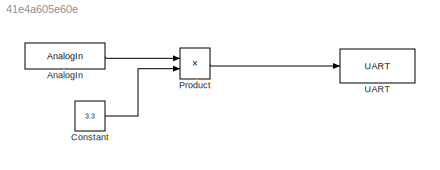
MODEL slx_41e4a605e60e
KIND model
BLOCK [Reference] AnalogIn  REF=mbed_lib/AnalogIn
  Ports = [0, 1]
  SFunctionSpec = double y1 = dummy(int8 p1,int8 p2, int8 p3)
  SParameter1 = read()
  SParameter2 = A0
  SParameter3 = -1
  SourceBlock = mbed_lib/AnalogIn
  SourceType = Analog In
BLOCK [Constant] Constant
  Value = 3.3
BLOCK [Product] Product
  InputSameDT = off
  OutDataTypeStr = Inherit: Inherit via internal rule
  Ports = [2, 1]
  RndMeth = Floor
  SaturateOnIntegerOverflow = off
BLOCK [Reference] UART  REF=mbed_lib/UART
  Ports = [1]
  SFunctionSpec = double y1 = dummy(int8 p1,int8 p2,int8 p3)
  SParameter1 = 1
  SParameter2 = ADC Value: read()-> %4.2f Volt\n
  SParameter3 = -1
  SourceBlock = mbed_lib/UART
  SourceType = MBED: UART
LINE AnalogIn:1 -> Product:1
LINE Constant:1 -> Product:2
LINE Product:1 -> UART:1
